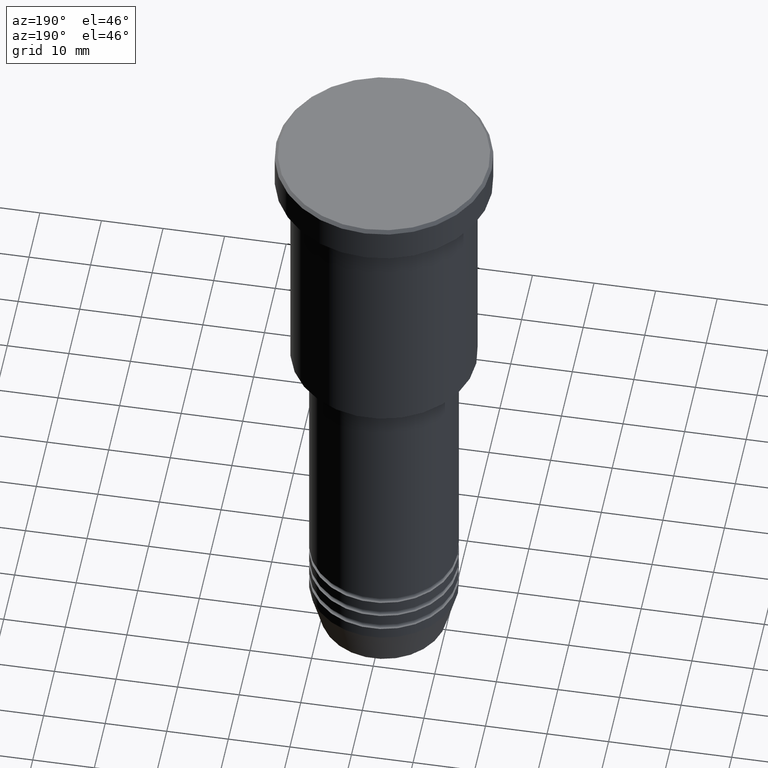
[diagram: clean part render]
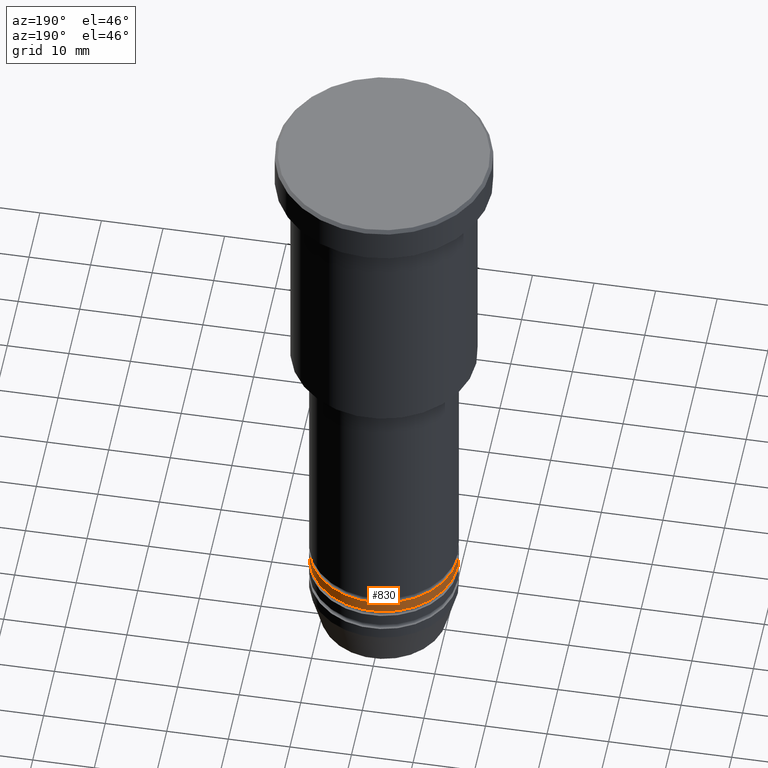
[diagram: same view with one face highlighted and labeled with its STEP entity id]
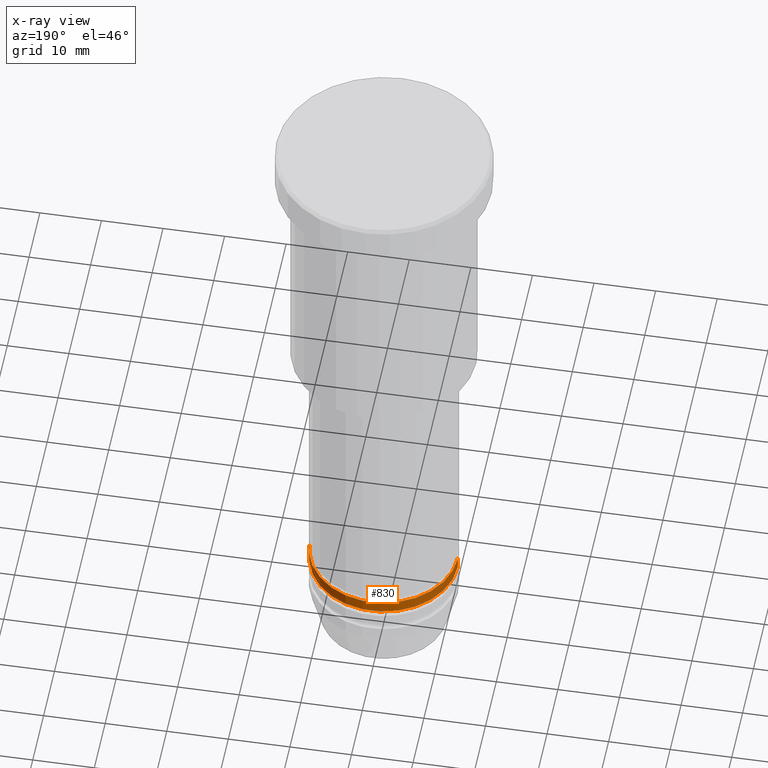
[diagram: x-ray of the same camera — body ghosted, the highlighted face saturated]
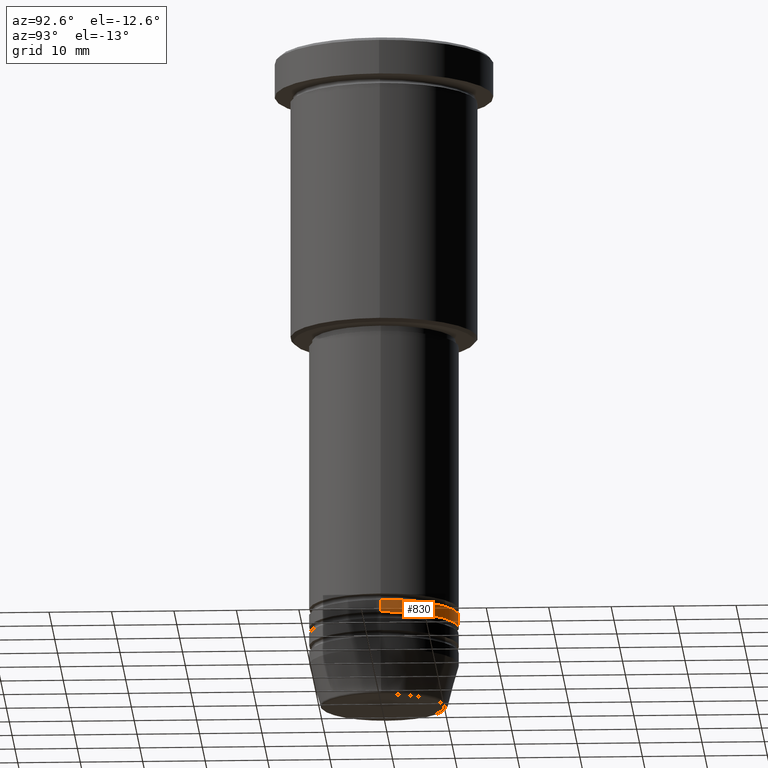
[diagram: same view with one face highlighted and labeled with its STEP entity id]
A machine part, auxiliary view. The second image highlights one B-rep face of the part: STEP entity #830.
The next image is the same camera in x-ray: the body ghosted, the highlighted face saturated — about 0% of this face is hidden behind the body in this view.
A second angle (auxiliary view) of the same face is appended — the face is thin or edge-on in the first view.
In plain terms, the highlighted cylindrical surface (partial cylindrical patch) has radius 12 mm, axis along (-0, -0, 1).
Its self-contained STEP definition (entity closure, byte-faithful):
#22 = DIRECTION ( 'NONE',  ( 1.000000000000000000, 0.000000000000000000, 0.000000000000000000 ) ) ;
#141 = DIRECTION ( 'NONE',  ( -0.000000000000000000, -0.000000000000000000, 1.000000000000000000 ) ) ;
#143 = CIRCLE ( 'NONE', #325, 12.00000000000000000 ) ;
#146 = DIRECTION ( 'NONE',  ( 1.000000000000000000, 0.000000000000000000, 0.000000000000000000 ) ) ;
#201 = FACE_OUTER_BOUND ( 'NONE', #542, .T. ) ;
#229 = CARTESIAN_POINT ( 'NONE',  ( 0.000000000000000000, 0.000000000000000000, -92.99999999999997158 ) ) ;
#233 = CARTESIAN_POINT ( 'NONE',  ( -12.00000000000000000, 1.469576158976823947E-15, -92.99999999999997158 ) ) ;
#292 = CARTESIAN_POINT ( 'NONE',  ( -12.00000000000000000, 1.469576158976823947E-15, -90.99999999999998579 ) ) ;
#325 = AXIS2_PLACEMENT_3D ( 'NONE', #764, #141, #22 ) ;
#407 = VERTEX_POINT ( 'NONE', #233 ) ;
#458 = DIRECTION ( 'NONE',  ( -0.000000000000000000, -0.000000000000000000, 1.000000000000000000 ) ) ;
#542 = EDGE_LOOP ( 'NONE', ( #690, #1048, #1154, #591 ) ) ;
#569 = CYLINDRICAL_SURFACE ( 'NONE', #701, 12.00000000000000000 ) ;
#582 = EDGE_CURVE ( 'NONE', #775, #407, #644, .T. ) ;
#591 = ORIENTED_EDGE ( 'NONE', *, *, #765, .F. ) ;
#599 = CARTESIAN_POINT ( 'NONE',  ( 12.00000000000000000, 0.000000000000000000, -90.99999999999998579 ) ) ;
#636 = CARTESIAN_POINT ( 'NONE',  ( 0.000000000000000000, 0.000000000000000000, 0.000000000000000000 ) ) ;
#644 = CIRCLE ( 'NONE', #874, 12.00000000000000000 ) ;
#652 = EDGE_CURVE ( 'NONE', #1121, #944, #143, .T. ) ;
#690 = ORIENTED_EDGE ( 'NONE', *, *, #582, .T. ) ;
#701 = AXIS2_PLACEMENT_3D ( 'NONE', #636, #1001, #1018 ) ;
#720 = DIRECTION ( 'NONE',  ( -0.000000000000000000, -0.000000000000000000, 1.000000000000000000 ) ) ;
#764 = CARTESIAN_POINT ( 'NONE',  ( 0.000000000000000000, 0.000000000000000000, -90.99999999999998579 ) ) ;
#765 = EDGE_CURVE ( 'NONE', #775, #1121, #791, .T. ) ;
#775 = VERTEX_POINT ( 'NONE', #1151 ) ;
#791 = LINE ( 'NONE', #1172, #932 ) ;
#820 = CARTESIAN_POINT ( 'NONE',  ( -12.00000000000000000, 1.469576158976823947E-15, 0.000000000000000000 ) ) ;
#830 = ADVANCED_FACE ( 'NONE', ( #201 ), #569, .T. ) ;
#874 = AXIS2_PLACEMENT_3D ( 'NONE', #229, #964, #146 ) ;
#892 = EDGE_CURVE ( 'NONE', #407, #944, #1096, .T. ) ;
#932 = VECTOR ( 'NONE', #720, 1000.000000000000000 ) ;
#944 = VERTEX_POINT ( 'NONE', #292 ) ;
#964 = DIRECTION ( 'NONE',  ( -0.000000000000000000, -0.000000000000000000, 1.000000000000000000 ) ) ;
#1001 = DIRECTION ( 'NONE',  ( -0.000000000000000000, -0.000000000000000000, 1.000000000000000000 ) ) ;
#1018 = DIRECTION ( 'NONE',  ( 1.000000000000000000, 0.000000000000000000, 0.000000000000000000 ) ) ;
#1048 = ORIENTED_EDGE ( 'NONE', *, *, #892, .T. ) ;
#1096 = LINE ( 'NONE', #820, #1179 ) ;
#1121 = VERTEX_POINT ( 'NONE', #599 ) ;
#1151 = CARTESIAN_POINT ( 'NONE',  ( 12.00000000000000000, 0.000000000000000000, -92.99999999999997158 ) ) ;
#1154 = ORIENTED_EDGE ( 'NONE', *, *, #652, .F. ) ;
#1172 = CARTESIAN_POINT ( 'NONE',  ( 12.00000000000000000, 0.000000000000000000, 0.000000000000000000 ) ) ;
#1179 = VECTOR ( 'NONE', #458, 1000.000000000000000 ) ;